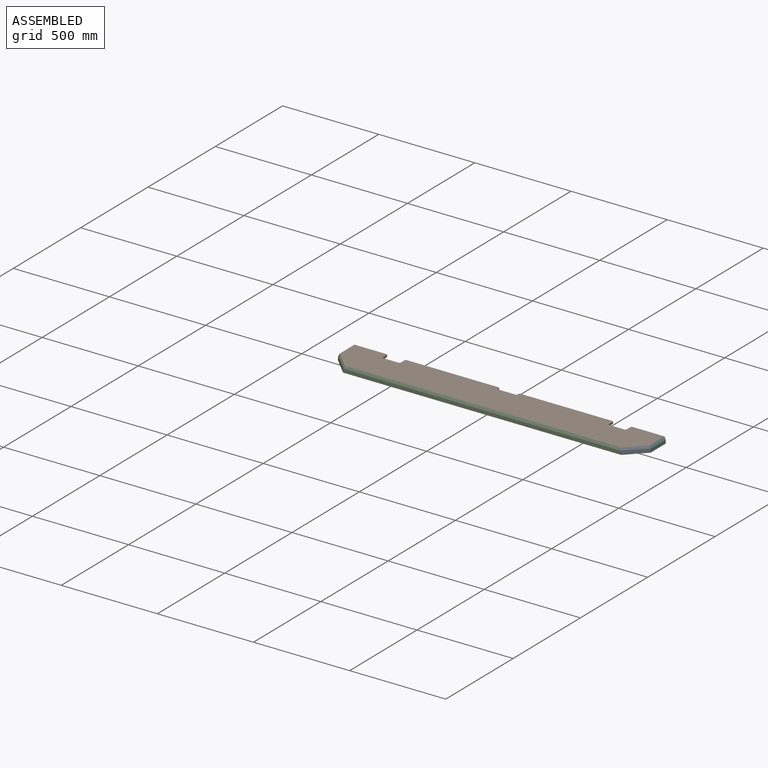
[diagram: assembled view]
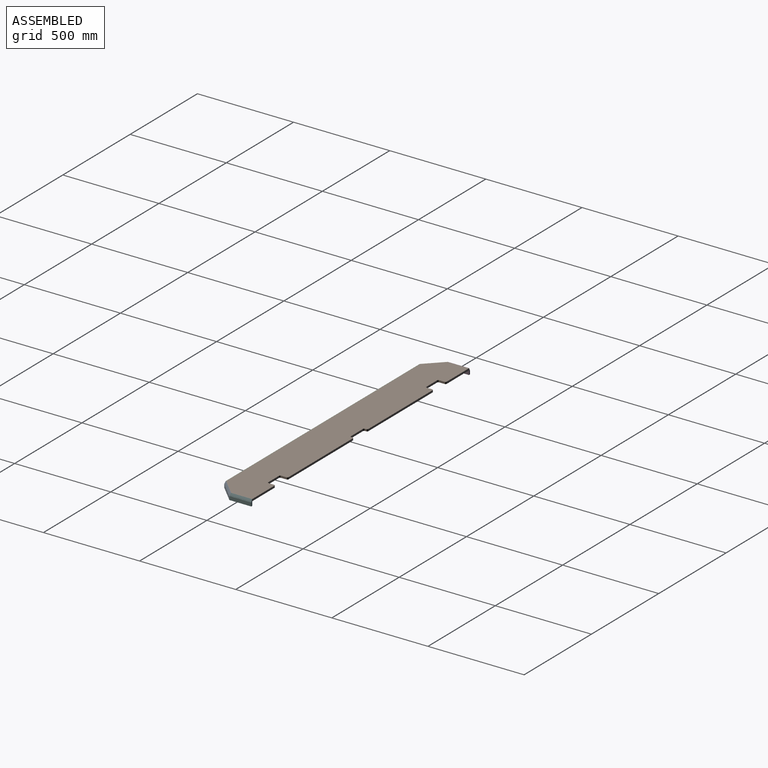
[diagram: assembled view, second angle]
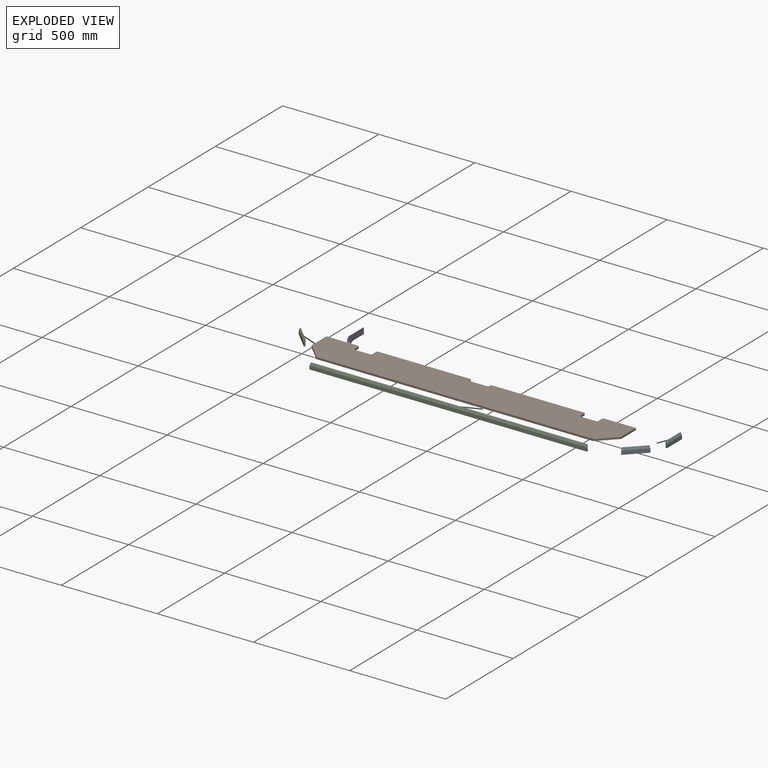
[diagram: exploded view]
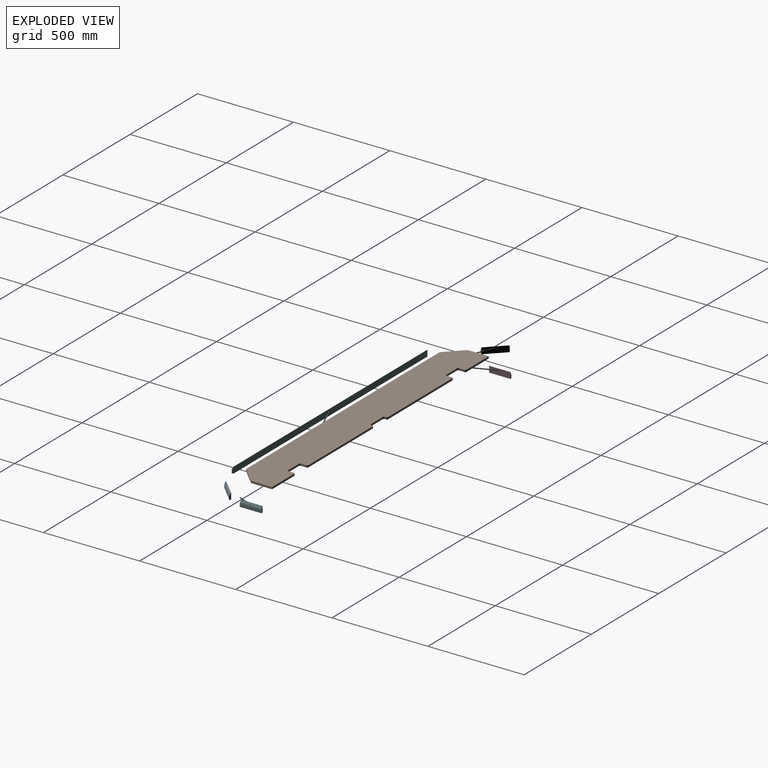
[diagram: exploded view, second angle]
ASSEMBLY  parts=6 mates=4
PART A: 8 faces, bbox 127.2x7.9x31.8 mm
  f0: plane 120.65x31.75mm, normal (0,1,0), area 3830.6mm2, adj f1,f5,f6,f7
  f1: plane 121.89x1.5mm, normal (0,0,1), area 181.9mm2, adj f0,f4,f6,f7
  f2: plane 127.23x19.05mm, normal (0,-1,0), area 2423.6mm2, adj f3,f5,f6,f7
  f3: plane 127.23x1.5mm, normal (0,0,1), area 189.9mm2, adj f2,f4,f6,f7
  f4: extruded ~125.98x12.7mm, area 1698.8mm2, adj f1,f3,f6,f7
  f5: plane 127.23x7.94mm, normal (0,0,-1), area 983.8mm2, adj f0,f2,f6,f7
  f6: plane 31.75x7.94mm, normal (0.92,0.38,0), area 221.3mm2, adj f0,f1,f2,f3,f4,f5
  f7: plane 31.75x7.94mm, normal (-0.92,0.38,0), area 221.3mm2, adj f0,f1,f2,f3,f4,f5
PART B: 32 faces, bbox 1609.7x195.3x10.2 mm
  f0: plane 165.1x10.16mm, normal (0,1,0), area 1677.4mm2, adj f3,f4,f10,f31
  f1: plane 477.84x10.16mm, normal (0,1,0), area 4854.8mm2, adj f3,f4,f25,f28
  f2: plane 477.84x10.16mm, normal (0,1,0), area 4854.8mm2, adj f3,f4,f23,f24
  f3: plane 1609.73x195.26mm, normal (0,0,-1), area 297504.4mm2, adj f0,f1,f2,f5,f6,f7,f8,f9
  f4: plane 1609.73x195.26mm, normal (0,0,1), area 297504.4mm2, adj f0,f1,f2,f5,f6,f7,f8,f9
  f5: plane 85.31x85.31mm, normal (-0.71,-0.71,0), area 1225.8mm2, adj f3,f4,f6,f10
  f6: plane 1439.1x10.16mm, normal (0,-1,0), area 14621.3mm2, adj f3,f4,f5,f7
  f7: plane 85.31x85.31mm, normal (0.71,-0.71,0), area 1225.8mm2, adj f3,f4,f6,f8
  f8: plane 109.95x10.16mm, normal (1,0,0), area 1117.1mm2, adj f3,f4,f7,f9
  f9: plane 165.1x10.16mm, normal (0,1,0), area 1677.4mm2, adj f3,f4,f8,f20
  f10: plane 109.95x10.16mm, normal (-1,0,0), area 1117.1mm2, adj f0,f3,f4,f5
  f11: plane 28.58x10.16mm, normal (1,0,0), area 290.3mm2, adj f3,f4,f22,f23
  f12: plane 28.58x10.16mm, normal (-1,0,0), area 290.3mm2, adj f3,f4,f20,f21
  f13: plane 79.38x10.16mm, normal (0,1,0), area 806.4mm2, adj f3,f4,f21,f22
  f14: plane 10.16x6.35mm, normal (-1,0,0), area 64.5mm2, adj f3,f4,f24,f27
  f15: plane 10.16x6.35mm, normal (1,0,0), area 64.5mm2, adj f3,f4,f25,f26
  f16: plane 88.9x10.16mm, normal (0,1,0), area 903.2mm2, adj f3,f4,f26,f27
  f17: plane 28.58x10.16mm, normal (1,0,0), area 290.3mm2, adj f3,f4,f30,f31
  f18: plane 28.58x10.16mm, normal (-1,0,0), area 290.3mm2, adj f3,f4,f28,f29
  f19: plane 79.38x10.16mm, normal (0,1,0), area 806.4mm2, adj f3,f4,f29,f30
  f20: cylinder r=6.35mm len=10.16mm, axis (0,0,-1), area 101.3mm2, adj f3,f4,f9,f12
  f21: cylinder r=6.35mm len=10.16mm, axis (0,0,-1), area 101.3mm2, adj f3,f4,f12,f13
  f22: cylinder r=6.35mm len=10.16mm, axis (0,0,1), area 101.3mm2, adj f3,f4,f11,f13
  f23: cylinder r=6.35mm len=10.16mm, axis (0,0,1), area 101.3mm2, adj f2,f3,f4,f11
  f24: cylinder r=6.35mm len=10.16mm, axis (0,0,-1), area 101.3mm2, adj f2,f3,f4,f14
  f25: cylinder r=6.35mm len=10.16mm, axis (0,0,1), area 101.3mm2, adj f1,f3,f4,f15
  f26: cylinder r=6.35mm len=10.16mm, axis (0,0,-1), area 101.3mm2, adj f3,f4,f15,f16
  f27: cylinder r=6.35mm len=10.16mm, axis (0,0,1), area 101.3mm2, adj f3,f4,f14,f16
  f28: cylinder r=6.35mm len=10.16mm, axis (0,0,-1), area 101.3mm2, adj f1,f3,f4,f18
  f29: cylinder r=6.35mm len=10.16mm, axis (0,0,1), area 101.3mm2, adj f3,f4,f18,f19
  f30: cylinder r=6.35mm len=10.16mm, axis (0,0,-1), area 101.3mm2, adj f3,f4,f17,f19
  f31: cylinder r=6.35mm len=10.16mm, axis (0,0,1), area 101.3mm2, adj f0,f3,f4,f17
PART C: 8 faces, bbox 1445.7x7.9x31.8 mm
  f0: extruded ~1444.43x12.7mm, area 19746.5mm2, adj f1,f4,f6,f7
  f1: plane 1445.68x1.5mm, normal (0,0,1), area 2167.6mm2, adj f0,f3,f6,f7
  f2: plane 1445.68x7.94mm, normal (0,0,-1), area 11449mm2, adj f3,f5,f6,f7
  f3: plane 1445.68x19.05mm, normal (0,-1,0), area 27540.1mm2, adj f1,f2,f6,f7
  f4: plane 1440.34x1.5mm, normal (0,0,1), area 2159.6mm2, adj f0,f5,f6,f7
  f5: plane 1439.1x31.75mm, normal (0,1,0), area 45691.4mm2, adj f2,f4,f6,f7
  f6: plane 31.75x7.94mm, normal (-0.92,0.38,0), area 221.3mm2, adj f0,f1,f2,f3,f4,f5
  f7: plane 31.75x7.94mm, normal (0.92,0.38,0), area 221.3mm2, adj f0,f1,f2,f3,f4,f5
PART D: 8 faces, bbox 113.2x7.9x31.8 mm
  f0: extruded ~112.62x12.7mm, area 1528.7mm2, adj f1,f4,f6,f7
  f1: plane 113.24x1.5mm, normal (0,0,1), area 169.4mm2, adj f0,f3,f6,f7
  f2: plane 113.24x7.94mm, normal (0,0,-1), area 885.8mm2, adj f3,f5,f6,f7
  f3: plane 113.24x19.05mm, normal (0,-1,0), area 2157.2mm2, adj f1,f2,f6,f7
  f4: plane 110.57x1.5mm, normal (0,0,1), area 165.4mm2, adj f0,f5,f6,f7
  f5: plane 109.95x31.75mm, normal (0,1,0), area 3490.9mm2, adj f2,f4,f6,f7
  f6: plane 31.75x7.94mm, normal (-1,0,0), area 204.5mm2, adj f0,f1,f2,f3,f4,f5
  f7: plane 31.75x7.94mm, normal (0.92,0.38,0), area 221.3mm2, adj f0,f1,f2,f3,f4,f5
PART E: 8 faces, bbox 127.2x7.9x31.8 mm
  f0: plane 127.23x7.94mm, normal (0,0,-1), area 983.8mm2, adj f3,f5,f6,f7
  f1: extruded ~125.98x12.7mm, area 1698.8mm2, adj f2,f4,f6,f7
  f2: plane 127.23x1.5mm, normal (0,0,1), area 189.9mm2, adj f1,f3,f6,f7
  f3: plane 127.23x19.05mm, normal (0,-1,0), area 2423.6mm2, adj f0,f2,f6,f7
  f4: plane 121.89x1.5mm, normal (0,0,1), area 181.9mm2, adj f1,f5,f6,f7
  f5: plane 120.65x31.75mm, normal (0,1,0), area 3830.6mm2, adj f0,f4,f6,f7
  f6: plane 31.75x7.94mm, normal (0.92,0.38,0), area 221.3mm2, adj f0,f1,f2,f3,f4,f5
  f7: plane 31.75x7.94mm, normal (-0.92,0.38,0), area 221.3mm2, adj f0,f1,f2,f3,f4,f5
PART F: 8 faces, bbox 113.2x7.9x31.8 mm
  f0: extruded ~112.62x12.7mm, area 1528.7mm2, adj f1,f4,f6,f7
  f1: plane 113.24x1.5mm, normal (0,0,1), area 169.4mm2, adj f0,f3,f6,f7
  f2: plane 113.24x7.94mm, normal (0,0,-1), area 885.8mm2, adj f3,f5,f6,f7
  f3: plane 113.24x19.05mm, normal (0,-1,0), area 2157.2mm2, adj f1,f2,f6,f7
  f4: plane 110.57x1.5mm, normal (0,0,1), area 165.4mm2, adj f0,f5,f6,f7
  f5: plane 109.95x31.75mm, normal (0,1,0), area 3490.9mm2, adj f2,f4,f6,f7
  f6: plane 31.75x7.94mm, normal (-0.92,0.38,0), area 221.3mm2, adj f0,f1,f2,f3,f4,f5
  f7: plane 31.75x7.94mm, normal (1,0,0), area 204.5mm2, adj f0,f1,f2,f3,f4,f5
PLACE A rot(axis=(0,0,1),45deg) t=(75.69,-465.86,19.71)mm
PLACE B t=(7.66,104.77,19.71)mm fixed
PLACE C t=(7.66,104.77,19.71)mm
PLACE D rot(axis=(0,0,-1),90deg) t=(-601.94,-858.53,19.71)mm
PLACE E rot(axis=(0,0,-1),45deg) t=(-60.37,-465.86,19.71)mm
PLACE F rot(axis=(0,0,1),90deg) t=(617.26,-858.53,19.71)mm
MATE fastened D.f7 <-> E.f7  axis (0.38,-0.92,0) through (-800.76,-6.65,1.26)mm
MATE fastened C.f7 <-> A.f7  axis (0.92,0.38,0) through (728.69,-94.04,1.26)mm
MATE fastened A.f6 <-> F.f6  axis (0.38,0.92,0) through (816.08,-6.65,1.26)mm
MATE fastened C.f6 <-> E.f6  axis (-0.92,0.38,0) through (-713.36,-94.04,1.26)mm
